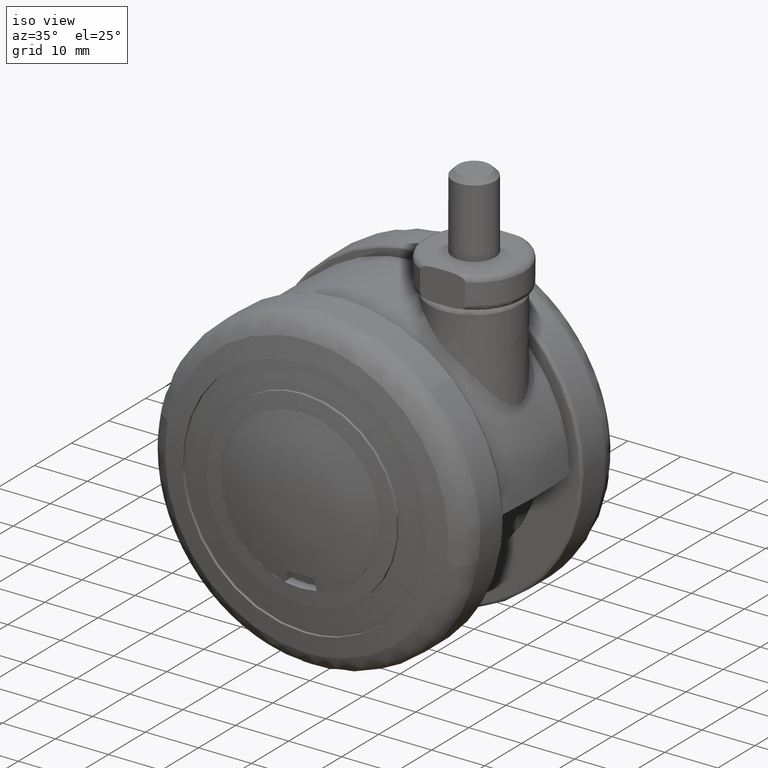
[diagram: clean part render]
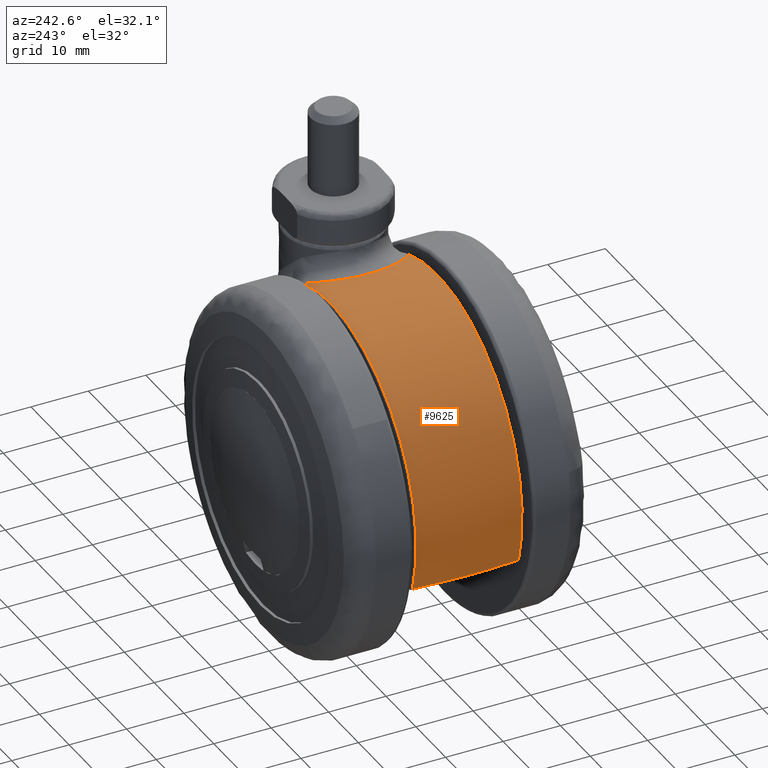
[diagram: tour spotlight — one face highlighted and labeled with its STEP entity id]
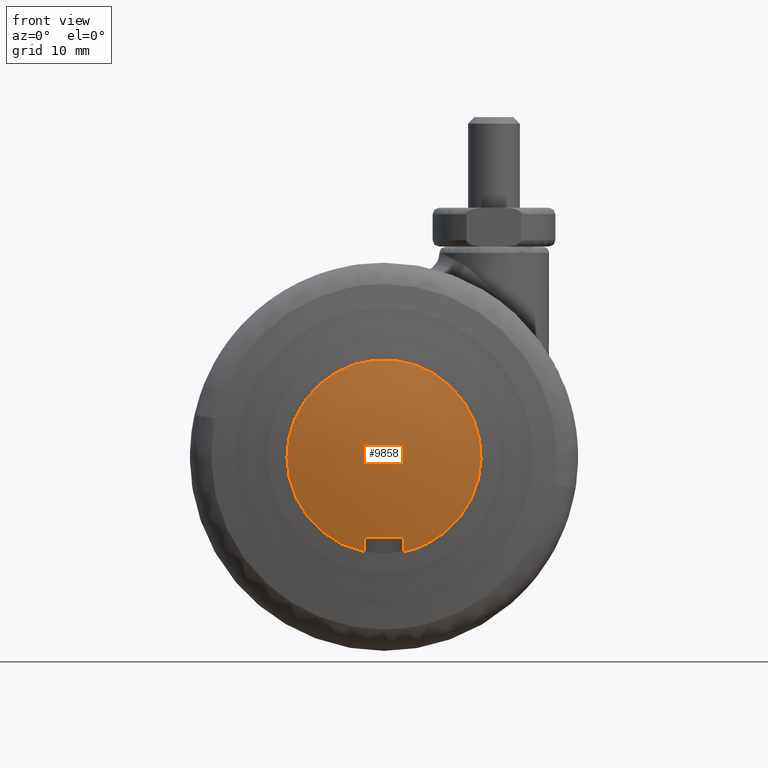
[diagram: tour spotlight — one face highlighted and labeled with its STEP entity id]
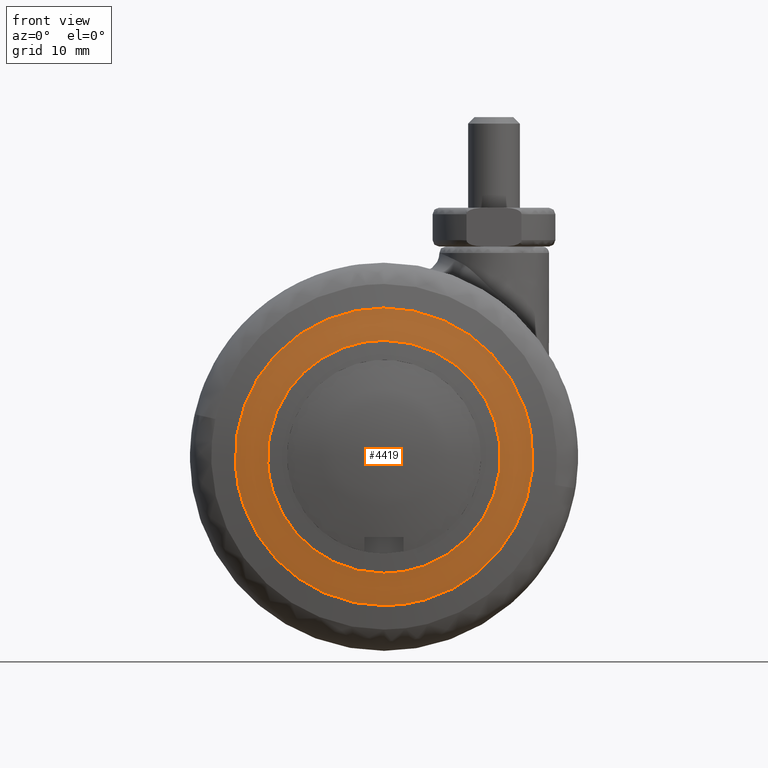
[diagram: tour spotlight — one face highlighted and labeled with its STEP entity id]
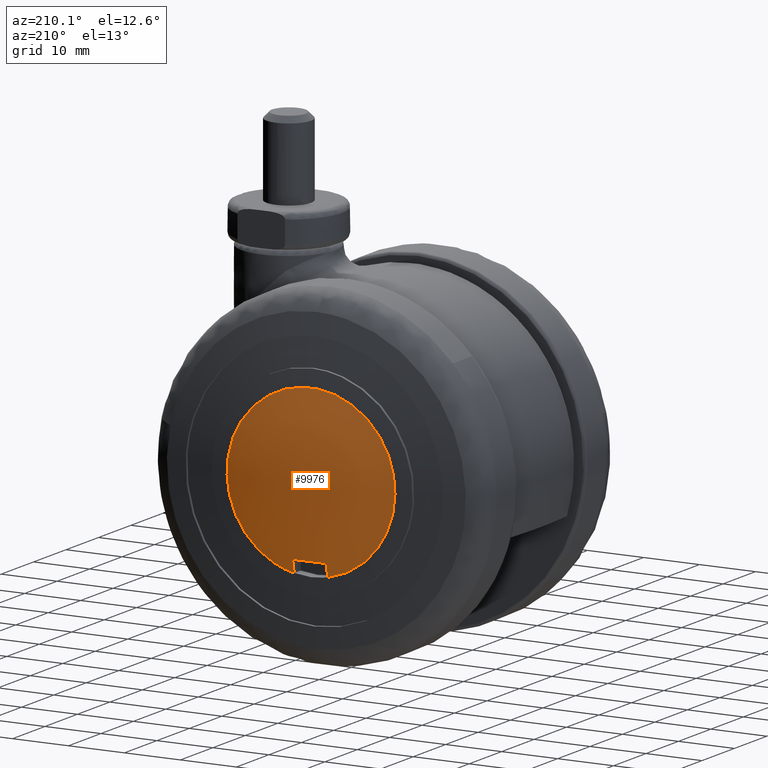
[diagram: tour spotlight — one face highlighted and labeled with its STEP entity id]
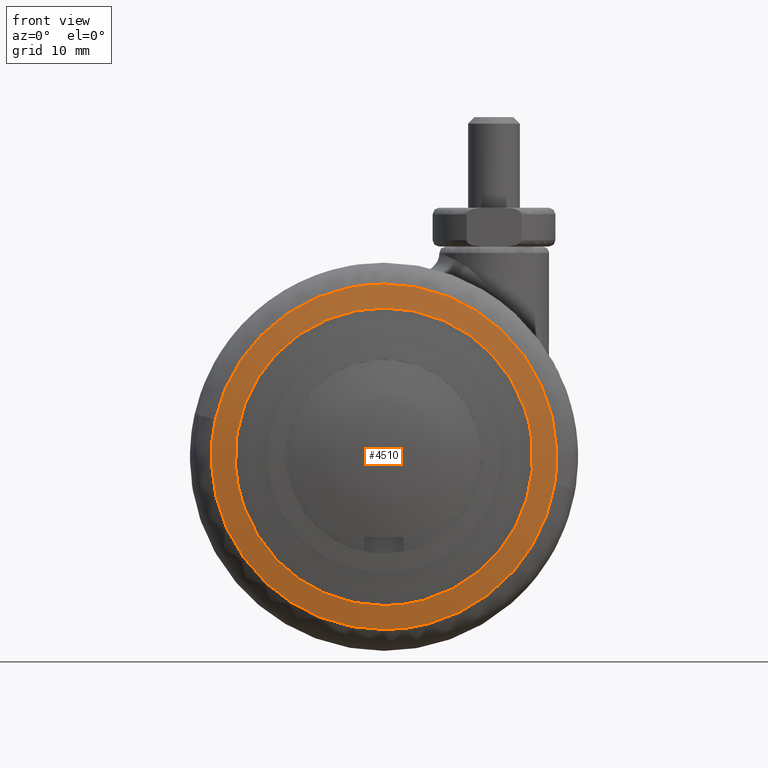
[diagram: tour spotlight — one face highlighted and labeled with its STEP entity id]
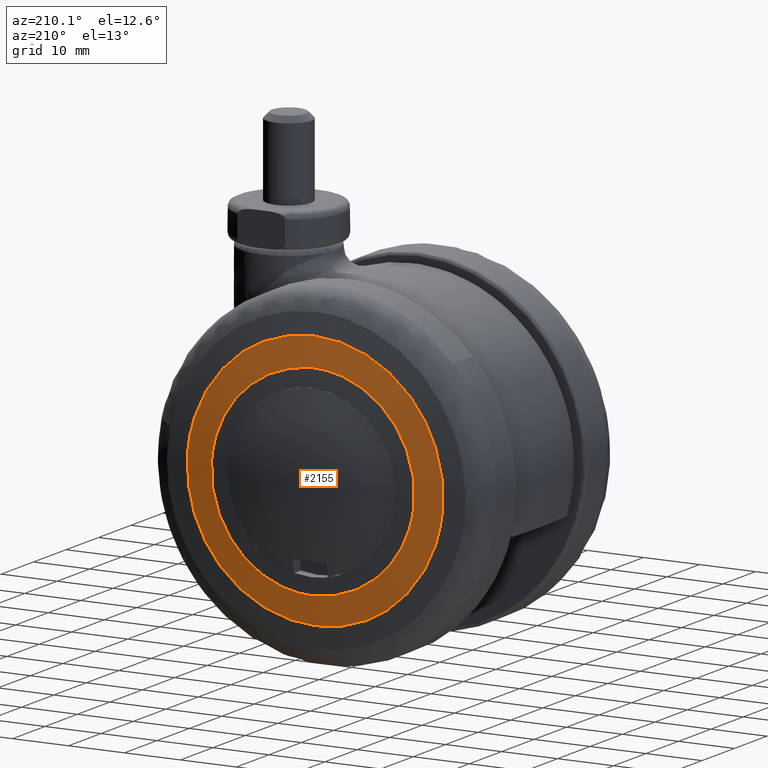
[diagram: tour spotlight — one face highlighted and labeled with its STEP entity id]
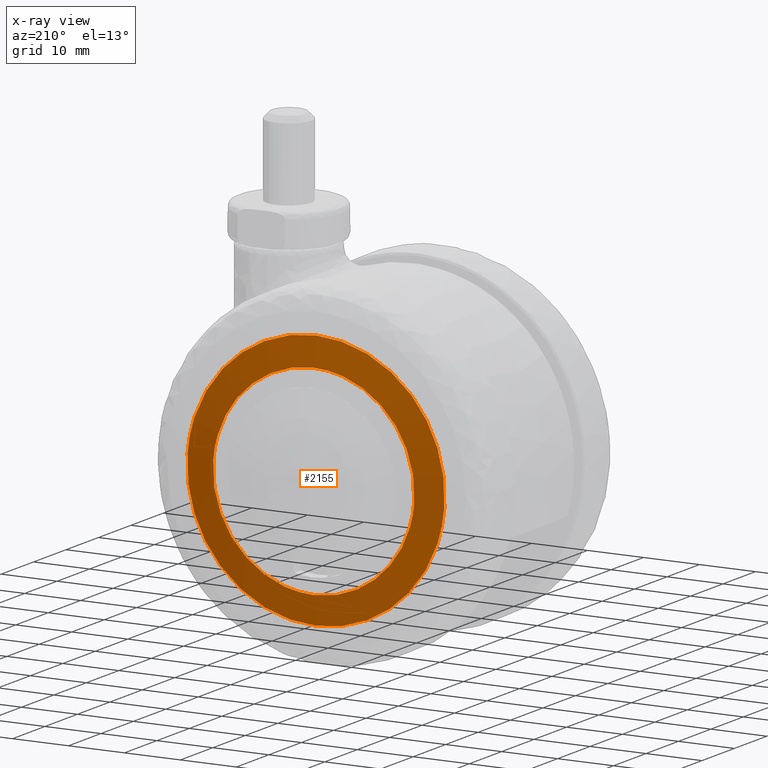
[diagram: x-ray of the same camera — body ghosted, this tour face saturated]
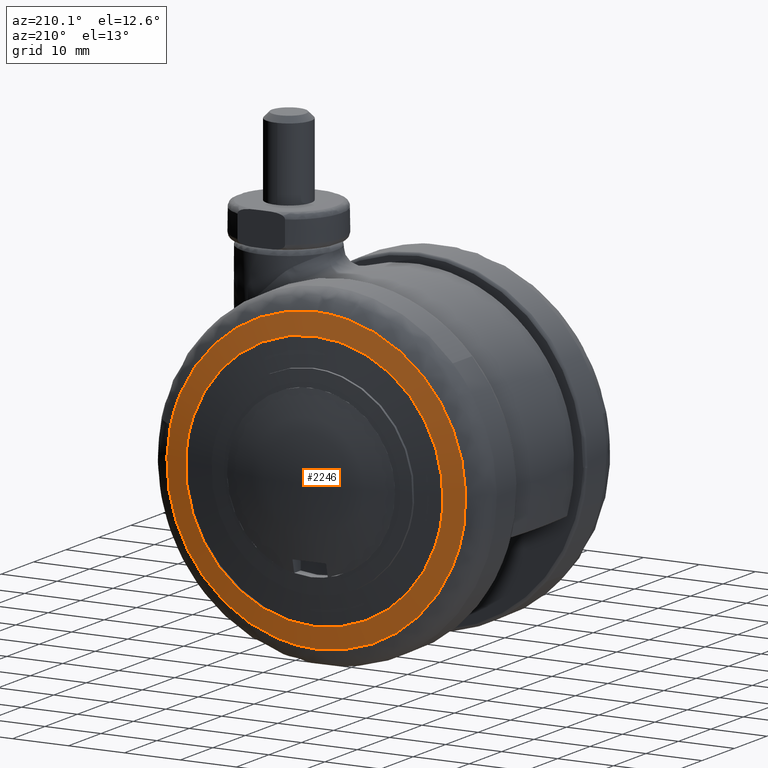
[diagram: tour spotlight — one face highlighted and labeled with its STEP entity id]
A machine part: a face-by-face anatomy tour. The part has 140 B-rep faces; the first image is the clean iso view, then the 7 largest visible faces are spotlighted one at a time (largest first), each with its STEP entity span.

Face 1 — auxiliary view, entity #9625. In plain terms, the highlighted face is a freeform B-spline surface patch.
Definition (entity closure, byte-faithful):
#7838=CARTESIAN_POINT('',(5.059516747520560,1.340962099850106,28.546281480002300));
#7839=VERTEX_POINT('',#7838);
#7855=CARTESIAN_POINT('',(5.062295755295710,-1.367205491745380,28.546316478665101));
#7856=VERTEX_POINT('',#7855);
#7857=CARTESIAN_POINT('',(5.062295755295710,-1.367205491745380,28.546316478665101));
#7858=CARTESIAN_POINT('',(5.010626840145182,-0.915896579493229,28.561180767147238));
#7859=CARTESIAN_POINT('',(4.959189204846862,-0.013225693845017,28.575692330697951));
#7860=CARTESIAN_POINT('',(5.008776061058359,0.889548483460565,28.561153399982530));
#7861=CARTESIAN_POINT('',(5.059516747520560,1.340962099850110,28.546281480002250));
#7862=B_SPLINE_CURVE_WITH_KNOTS('',3,(#7857,#7858,#7859,#7860,#7861),.UNSPECIFIED.,.F.,.U.,(4,1,4),(0.0,0.500000000000000,1.0),.UNSPECIFIED.);
#7863=EDGE_CURVE('',#7856,#7839,#7862,.T.);
#7982=CARTESIAN_POINT('',(9.501504232084491,-9.225721352359141,26.981105444065051));
#7983=VERTEX_POINT('',#7982);
#8033=CARTESIAN_POINT('',(9.501504232084491,-9.225721352359141,26.981105444065051));
#8034=CARTESIAN_POINT('',(9.203560095329822,-9.005785746395505,27.106093431928489));
#8035=CARTESIAN_POINT('',(8.913844856302749,-8.767418815966630,27.223364090854361));
#8036=CARTESIAN_POINT('',(8.563025605976115,-8.445239840962561,27.360964647899220));
#8037=CARTESIAN_POINT('',(8.493389849218694,-8.379544774348636,27.388049099979710));
#8038=CARTESIAN_POINT('',(8.356246053765331,-8.246642930895897,27.440964357125239));
#8039=CARTESIAN_POINT('',(8.153356836653380,-8.044694502824109,27.518600703204179));
#8040=CARTESIAN_POINT('',(7.958882392109852,-7.835061510399848,27.591227557974310));
#8041=CARTESIAN_POINT('',(7.581058447418008,-7.405745206480038,27.730265383465252));
#8042=CARTESIAN_POINT('',(7.343982817104533,-7.106158925007930,27.814688901021221));
#8043=CARTESIAN_POINT('',(6.899582904844656,-6.480654284401740,27.968945110117001));
#8044=CARTESIAN_POINT('',(6.692255892550428,-6.154737245473559,28.038775055559999));
#8045=CARTESIAN_POINT('',(6.452323006363753,-5.730633352185834,28.117783831159720));
#8046=CARTESIAN_POINT('',(6.405300016792903,-5.644975099820764,28.133170290549540));
#8047=CARTESIAN_POINT('',(6.313206654411290,-5.471968687279810,28.163128299414069));
#8048=CARTESIAN_POINT('',(6.268107470699666,-5.384554279186976,28.177708859658321));
#8049=CARTESIAN_POINT('',(6.136560748148816,-5.121355279062454,28.220000020845831));
#8050=CARTESIAN_POINT('',(6.053590873271313,-4.944125559003860,28.246350492418891));
#8051=CARTESIAN_POINT('',(5.818577340619182,-4.407281069777810,28.320261420750331));
#8052=CARTESIAN_POINT('',(5.680393222507999,-4.042525521111160,28.362704568433600));
#8053=CARTESIAN_POINT('',(5.440404932949914,-3.299646569260204,28.435390514219030));
#8054=CARTESIAN_POINT('',(5.338600552891083,-2.921522966139669,28.465630681770659));
#8055=CARTESIAN_POINT('',(5.213612301770892,-2.344224071372446,28.502394791886879));
#8056=CARTESIAN_POINT('',(5.176544823601611,-2.149895614861347,28.513221257370340));
#8057=CARTESIAN_POINT('',(5.111999950609592,-1.758674038590505,28.531985057903839));
#8058=CARTESIAN_POINT('',(5.084709387520912,-1.562980300441023,28.539868449045120));
#8059=CARTESIAN_POINT('',(5.062295755295710,-1.367205491745380,28.546316478665101));
#8060=B_SPLINE_CURVE_WITH_KNOTS('',3,(#8033,#8034,#8035,#8036,#8037,#8038,#8039,#8040,#8041,#8042,#8043,#8044,#8045,#8046,#8047,#8048,#8049,#8050,#8051,#8052,#8053,#8054,#8055,#8056,#8057,#8058,#8059),.UNSPECIFIED.,.F.,.U.,(4,2,2,1,2,2,2,2,2,2,2,2,2,4),(0.0,0.125000000000001,0.156250000000001,0.187500000000001,0.250000000000001,0.375000000000001,0.500000000000000,0.531250000000000,0.562500000000001,0.625000000000000,0.750000000000000,0.875000000000000,0.937500000000000,1.0),.UNSPECIFIED.);
#8061=EDGE_CURVE('',#7983,#7856,#8060,.T.);
#8166=CARTESIAN_POINT('',(9.504115565211670,9.225910421117030,26.973998097281552));
#8167=VERTEX_POINT('',#8166);
#8183=CARTESIAN_POINT('',(5.059516747520560,1.340962099850106,28.546281480002300));
#8184=CARTESIAN_POINT('',(5.081629933916507,1.537691670078839,28.539800181432781));
#8185=CARTESIAN_POINT('',(5.108742143898764,1.734776030772791,28.531848586138199));
#8186=CARTESIAN_POINT('',(5.172570085498111,2.126206586434802,28.513056700117289));
#8187=CARTESIAN_POINT('',(5.246042280661228,2.515505149678534,28.491364212747438));
#8188=CARTESIAN_POINT('',(5.338789612133349,2.900532317360915,28.463702504137380));
#8189=CARTESIAN_POINT('',(5.441248908518032,3.283400734707216,28.432924175588049));
#8190=CARTESIAN_POINT('',(5.497104532768221,3.472869992546622,28.416045365857720));
#8191=CARTESIAN_POINT('',(5.677957981042044,4.034297791639415,28.360931268356978));
#8192=CARTESIAN_POINT('',(5.816343985095614,4.399807408474569,28.318198178715530));
#8193=CARTESIAN_POINT('',(6.128175562353518,5.113381164567580,28.219699382910228));
#8194=CARTESIAN_POINT('',(6.301621480978626,5.461445619198782,28.163936970383251));
#8195=CARTESIAN_POINT('',(6.588490323331378,5.970090620508734,28.069203073209341));
#8196=CARTESIAN_POINT('',(6.688571870735639,6.137392355899720,28.035770934656941));
#8197=CARTESIAN_POINT('',(6.845514701305781,6.384884217360384,27.982617590877879));
#8198=CARTESIAN_POINT('',(6.898989812263138,6.466831290145148,27.964389999996239));
#8199=CARTESIAN_POINT('',(7.007573970494306,6.628585673210626,27.927121030748371));
#8200=CARTESIAN_POINT('',(7.062759447029435,6.708516536539709,27.908053919288299));
#8201=CARTESIAN_POINT('',(7.343093403516376,7.103477710441534,27.810508452660571));
#8202=CARTESIAN_POINT('',(7.581429248789579,7.404464419328385,27.725420670669980));
#8203=CARTESIAN_POINT('',(8.085232210989199,7.976866640702492,27.539624130657121));
#8204=CARTESIAN_POINT('',(8.350701883719555,8.248280880324783,27.438918412606700));
#8205=CARTESIAN_POINT('',(8.769083133193139,8.632856046497880,27.274587967132490));
#8206=CARTESIAN_POINT('',(8.911912097625775,8.757283348286791,27.217594529575301));
#8207=CARTESIAN_POINT('',(9.131238804970504,8.938169163279708,27.128537258487089));
#8208=CARTESIAN_POINT('',(9.205215579848519,8.997514365428017,27.098247228258028));
#8209=CARTESIAN_POINT('',(9.353931071711706,9.113551278958715,27.036825929850870));
#8210=CARTESIAN_POINT('',(9.428782865248378,9.170338252511597,27.005649055486121));
#8211=CARTESIAN_POINT('',(9.504115565211670,9.225910421117030,26.973998097281552));
#8212=B_SPLINE_CURVE_WITH_KNOTS('',3,(#8183,#8184,#8185,#8186,#8187,#8188,#8189,#8190,#8191,#8192,#8193,#8194,#8195,#8196,#8197,#8198,#8199,#8200,#8201,#8202,#8203,#8204,#8205,#8206,#8207,#8208,#8209,#8210,#8211),.UNSPECIFIED.,.F.,.U.,(4,2,1,2,2,2,2,2,2,2,2,2,2,2,4),(0.0,0.062500000000000,0.125000000000000,0.187500000000000,0.249999999999999,0.374999999999999,0.499999999999999,0.562499999999999,0.593749999999999,0.624999999999999,0.749999999999999,0.874999999999999,0.937500000000000,0.968750000000000,1.0),.UNSPECIFIED.);
#8213=EDGE_CURVE('',#7839,#8167,#8212,.T.);
#9107=CARTESIAN_POINT('',(-27.372560272495900,9.225910421117030,-8.286599432676050));
#9108=VERTEX_POINT('',#9107);
#9139=CARTESIAN_POINT('',(-27.378661767398199,-9.225721352359141,-8.286586358838260));
#9140=VERTEX_POINT('',#9139);
#9158=CARTESIAN_POINT('',(-27.372560272495900,9.225910421117030,-8.286599432676050));
#9159=CARTESIAN_POINT('',(-27.650666014243019,6.157540318089942,-8.286003411191107));
#9160=CARTESIAN_POINT('',(-27.790055424749362,3.082867323540472,-8.285716529338526));
#9161=CARTESIAN_POINT('',(-27.791658465721579,-1.538543218170912,-8.285713184443956));
#9162=CARTESIAN_POINT('',(-27.757511957860402,-3.079005762261954,-8.285784193779621));
#9163=CARTESIAN_POINT('',(-27.620023413236350,-6.155244753344616,-8.286072950721302));
#9164=CARTESIAN_POINT('',(-27.516697907832580,-7.691445844573929,-8.286290643040722));
#9165=CARTESIAN_POINT('',(-27.378661767398199,-9.225721352359141,-8.286586358838260));
#9166=B_SPLINE_CURVE_WITH_KNOTS('',3,(#9158,#9159,#9160,#9161,#9162,#9163,#9164,#9165),.UNSPECIFIED.,.F.,.U.,(4,2,2,4),(0.0,0.500000000000000,0.750000000000000,1.0),.UNSPECIFIED.);
#9167=EDGE_CURVE('',#9108,#9140,#9166,.T.);
#9211=CARTESIAN_POINT('',(-27.378661767398199,-9.225721352359141,-8.286586358838267));
#9212=CARTESIAN_POINT('',(-32.468592195011382,-9.225721352359143,8.530408910700800));
#9213=CARTESIAN_POINT('',(-19.769944654999659,-9.225721352359141,20.673846328013731));
#9214=CARTESIAN_POINT('',(-7.071297114987921,-9.225721352359143,32.817283745326662));
#9215=CARTESIAN_POINT('',(9.501504232084486,-9.225721352359141,26.981105444065051));
#9223=(BOUNDED_CURVE()B_SPLINE_CURVE(2,(#9211,#9212,#9213,#9214,#9215),.UNSPECIFIED.,.F.,.U.)B_SPLINE_CURVE_WITH_KNOTS((3,2,3),(0.0,0.500000000000000,1.0),.UNSPECIFIED.)CURVE()GEOMETRIC_REPRESENTATION_ITEM()RATIONAL_B_SPLINE_CURVE((1.0,0.852094384698286,1.0,0.852094384698286,1.0))REPRESENTATION_ITEM(''));
#9224=EDGE_CURVE('',#9140,#7983,#9223,.T.);
#9294=CARTESIAN_POINT('',(9.504115565211668,9.225910421117030,26.973998097281552));
#9295=CARTESIAN_POINT('',(-7.066464892938787,9.225910421117030,32.812536051088692));
#9296=CARTESIAN_POINT('',(-19.764811246423051,9.225910421117030,20.670680260270011));
#9297=CARTESIAN_POINT('',(-32.463157599907326,9.225910421117030,8.528824469451319));
#9298=CARTESIAN_POINT('',(-27.372560272495900,9.225910421117030,-8.286599432676043));
#9306=(BOUNDED_CURVE()B_SPLINE_CURVE(2,(#9294,#9295,#9296,#9297,#9298),.UNSPECIFIED.,.F.,.U.)B_SPLINE_CURVE_WITH_KNOTS((3,2,3),(0.0,0.500000000000000,1.0),.UNSPECIFIED.)CURVE()GEOMETRIC_REPRESENTATION_ITEM()RATIONAL_B_SPLINE_CURVE((1.0,0.852064169373429,1.0,0.852064169373429,1.0))REPRESENTATION_ITEM(''));
#9307=EDGE_CURVE('',#8167,#9108,#9306,.T.);
#9588=CARTESIAN_POINT('',(-26.676848450256447,10.143581472001538,-10.074707589780928));
#9589=CARTESIAN_POINT('',(-27.581709698437958,0.000360349883320,-10.416435080633216));
#9590=CARTESIAN_POINT('',(-26.682848940941646,-10.143470366928019,-10.076973719123798));
#9591=CARTESIAN_POINT('',(-28.515854822493747,10.143581472001538,-5.205197099869348));
#9592=CARTESIAN_POINT('',(-29.483093963794801,0.000360349883319,-5.381753980401959));
#9593=CARTESIAN_POINT('',(-28.522268965512239,-10.143470366928019,-5.206367917957944));
#9594=CARTESIAN_POINT('',(-28.515854822493743,10.143581472001534,0.0));
#9595=CARTESIAN_POINT('',(-29.483093963794794,0.000360349883318,0.0));
#9596=CARTESIAN_POINT('',(-28.522268965512236,-10.143470366928021,0.0));
#9597=CARTESIAN_POINT('',(-28.515854822493733,10.143581472001541,28.515854822493733));
#9598=CARTESIAN_POINT('',(-29.483093963794786,0.000360349883322,29.483093963794786));
#9599=CARTESIAN_POINT('',(-28.522268965512225,-10.143470366928021,28.522268965512225));
#9600=CARTESIAN_POINT('',(0.0,10.143581472001534,28.515854822493743));
#9601=CARTESIAN_POINT('',(0.0,0.000360349883318,29.483093963794794));
#9602=CARTESIAN_POINT('',(0.0,-10.143470366928021,28.522268965512236));
#9603=CARTESIAN_POINT('',(6.150231705096826,10.143581472001534,28.515854822493740));
#9604=CARTESIAN_POINT('',(6.358843541223439,0.000360349883319,29.483093963794797));
#9605=CARTESIAN_POINT('',(6.151615092198456,-10.143470366928021,28.522268965512232));
#9606=CARTESIAN_POINT('',(11.753717655500665,10.143581472001536,25.980840970459589));
#9607=CARTESIAN_POINT('',(12.152396069420547,0.000360349883320,26.862094100235090));
#9608=CARTESIAN_POINT('',(11.756361448804793,-10.143470366928021,25.986684906430032));
#9616=(BOUNDED_SURFACE()B_SPLINE_SURFACE(2,2,((#9588,#9591,#9594,#9597,#9600,#9603,#9606),(#9589,#9592,#9595,#9598,#9601,#9604,#9607),(#9590,#9593,#9596,#9599,#9602,#9605,#9608)),.UNSPECIFIED.,.F.,.F.,.U.)B_SPLINE_SURFACE_WITH_KNOTS((3,3),(3,2,2,3),(0.0,20.332657518536401),(0.0,11.531703328840390,59.580467199008702,73.034119707969666),.UNSPECIFIED.)GEOMETRIC_REPRESENTATION_ITEM()RATIONAL_B_SPLINE_SURFACE(((0.774103826024944,0.805784723191523,0.866709525434944,0.612856182754023,0.866709525434944,0.795630596747089,0.764355864057263),(0.770619757233790,0.802158065743160,0.862808659030408,0.610097853666873,0.862808659030408,0.792049640758732,0.760915668670332),(0.774080618033699,0.805760565392307,0.866683541081938,0.612837809041808,0.866683541081938,0.795606743373287,0.764332948314433)))REPRESENTATION_ITEM('')SURFACE());
#9617=ORIENTED_EDGE('',*,*,#7863,.T.);
#9618=ORIENTED_EDGE('',*,*,#8213,.T.);
#9619=ORIENTED_EDGE('',*,*,#9307,.T.);
#9620=ORIENTED_EDGE('',*,*,#9167,.T.);
#9621=ORIENTED_EDGE('',*,*,#9224,.T.);
#9622=ORIENTED_EDGE('',*,*,#8061,.T.);
#9623=EDGE_LOOP('',(#9617,#9618,#9619,#9620,#9621,#9622));
#9624=FACE_OUTER_BOUND('',#9623,.T.);
#9625=ADVANCED_FACE('',(#9624),#9616,.T.);

Face 2 — front view, entity #9858. In plain terms, the highlighted face is a freeform B-spline surface patch.
Definition (entity closure, byte-faithful):
#7707=CARTESIAN_POINT('',(3.0,-23.033229668414350,-12.400000000000000));
#7708=VERTEX_POINT('',#7707);
#7709=CARTESIAN_POINT('',(-3.0,-23.033229668414350,-12.400000000000000));
#7710=VERTEX_POINT('',#7709);
#7711=CARTESIAN_POINT('',(3.000000000000015,-23.033229668414350,-12.400000000000000));
#7712=CARTESIAN_POINT('',(2.168404E-014,-23.186739989781426,-12.399999999999997));
#7713=CARTESIAN_POINT('',(-2.999999999999993,-23.033229668414350,-12.400000000000000));
#7721=(BOUNDED_CURVE()B_SPLINE_CURVE(2,(#7711,#7712,#7713),.UNSPECIFIED.,.F.,.U.)CURVE()GEOMETRIC_REPRESENTATION_ITEM()QUASI_UNIFORM_CURVE()RATIONAL_B_SPLINE_CURVE((1.0,0.998693375438973,1.0))REPRESENTATION_ITEM(''));
#7722=EDGE_CURVE('',#7708,#7710,#7721,.T.);
#7751=CARTESIAN_POINT('',(3.0,-22.500000193105048,-14.696938456699060));
#7752=VERTEX_POINT('',#7751);
#7753=CARTESIAN_POINT('',(3.0,-22.500000193105048,-14.696938456699060));
#7754=CARTESIAN_POINT('',(2.999999999999999,-22.789215183001911,-13.553715829802712));
#7755=CARTESIAN_POINT('',(3.0,-23.033229668414268,-12.399999999999990));
#7763=(BOUNDED_CURVE()B_SPLINE_CURVE(2,(#7753,#7754,#7755),.UNSPECIFIED.,.F.,.U.)CURVE()GEOMETRIC_REPRESENTATION_ITEM()QUASI_UNIFORM_CURVE()RATIONAL_B_SPLINE_CURVE((1.0,0.999806432813241,1.0))REPRESENTATION_ITEM(''));
#7764=EDGE_CURVE('',#7752,#7708,#7763,.T.);
#7787=CARTESIAN_POINT('',(-3.0,-22.500000193105048,-14.696938456699060));
#7788=VERTEX_POINT('',#7787);
#7789=CARTESIAN_POINT('',(-3.0,-23.033229668414268,-12.399999999999970));
#7790=CARTESIAN_POINT('',(-3.0,-22.789215183001925,-13.553715829802664));
#7791=CARTESIAN_POINT('',(-3.0,-22.500000193105048,-14.696938456699060));
#7799=(BOUNDED_CURVE()B_SPLINE_CURVE(2,(#7789,#7790,#7791),.UNSPECIFIED.,.F.,.U.)CURVE()GEOMETRIC_REPRESENTATION_ITEM()QUASI_UNIFORM_CURVE()RATIONAL_B_SPLINE_CURVE((1.0,0.999806432813240,1.0))REPRESENTATION_ITEM(''));
#7800=EDGE_CURVE('',#7710,#7788,#7799,.T.);
#9804=CARTESIAN_POINT('',(-3.0,-22.500000193105048,-14.696938456699060));
#9805=CARTESIAN_POINT('',(-16.287048005877153,-22.500000193111298,-11.984731139843753));
#9806=CARTESIAN_POINT('',(-14.924042295076861,-22.500000193111301,1.507634430078121));
#9807=CARTESIAN_POINT('',(-13.561036584276568,-22.500000193111298,14.999999999999998));
#9808=CARTESIAN_POINT('',(0.0,-22.500000193111301,15.0));
#9809=CARTESIAN_POINT('',(13.561036584276568,-22.500000193111298,14.999999999999998));
#9810=CARTESIAN_POINT('',(14.924042295076861,-22.500000193111301,1.507634430078128));
#9811=CARTESIAN_POINT('',(16.287048005877153,-22.500000193111298,-11.984731139843747));
#9812=CARTESIAN_POINT('',(3.0,-22.500000193105048,-14.696938456699060));
#9820=(BOUNDED_CURVE()B_SPLINE_CURVE(2,(#9804,#9805,#9806,#9807,#9808,#9809,#9810,#9811,#9812),.UNSPECIFIED.,.F.,.U.)B_SPLINE_CURVE_WITH_KNOTS((3,2,2,2,3),(0.0,0.250000000000000,0.500000000000000,0.750000000000000,1.0),.UNSPECIFIED.)CURVE()GEOMETRIC_REPRESENTATION_ITEM()RATIONAL_B_SPLINE_CURVE((1.0,0.741791399924941,1.0,0.741791399924941,1.0,0.741791399924941,1.0,0.741791399924941,1.0))REPRESENTATION_ITEM(''));
#9821=EDGE_CURVE('',#7788,#7752,#9820,.T.);
#9828=CARTESIAN_POINT('',(-16.098346467538715,-19.987903132292345,-15.855974009386893));
#9829=CARTESIAN_POINT('',(-8.202931159676842,-22.195516713013962,-16.133352820747060));
#9830=CARTESIAN_POINT('',(8.202930561120420,-22.195516713013962,-16.133352820747049));
#9831=CARTESIAN_POINT('',(16.098345336901620,-19.987903448426390,-15.855974049108001));
#9832=CARTESIAN_POINT('',(-16.445717487160895,-22.287371305518388,-7.442574693214092));
#9833=CARTESIAN_POINT('',(-8.383390024889796,-24.588442385695281,-7.561804526654255));
#9834=CARTESIAN_POINT('',(8.383389413165542,-24.588442385695281,-7.561804526654255));
#9835=CARTESIAN_POINT('',(16.445716333097600,-22.287371634899916,-7.442574710280973));
#9836=CARTESIAN_POINT('',(-16.445717487160895,-21.925092315760146,8.832047118799208));
#9837=CARTESIAN_POINT('',(-8.383390024889796,-24.219090781384001,9.030539621808934));
#9838=CARTESIAN_POINT('',(8.383389413165542,-24.219090781384001,9.030539621808934));
#9839=CARTESIAN_POINT('',(16.445716333097600,-21.925092644129272,8.832047147211968));
#9840=CARTESIAN_POINT('',(-16.184465571661647,-19.893092356467758,16.098522441003045));
#9841=CARTESIAN_POINT('',(-8.247656069661629,-22.110921546133486,16.433364579712762));
#9842=CARTESIAN_POINT('',(8.247655467841693,-22.110921546133486,16.433364579712762));
#9843=CARTESIAN_POINT('',(16.184464435212977,-19.893092674032257,16.098522488948113));
#9851=(BOUNDED_SURFACE()B_SPLINE_SURFACE(2,2,((#9828,#9832,#9836,#9840),(#9829,#9833,#9837,#9841),(#9830,#9834,#9838,#9842),(#9831,#9835,#9839,#9843)),.UNSPECIFIED.,.F.,.F.,.U.)B_SPLINE_SURFACE_WITH_KNOTS((3,1,3),(3,1,3),(14.482770024585720,30.682292575586398,46.881813944530492),(13.485859606695181,30.682292575586398,45.555778767633441),.UNSPECIFIED.)GEOMETRIC_REPRESENTATION_ITEM()RATIONAL_B_SPLINE_SURFACE(((1.041521878261768,1.019522563419284,1.019522563419284,1.035979839775345),(1.021999314842484,1.0,1.0,1.016457276356061),(1.021999314842484,1.0,1.0,1.016457276356061),(1.041521875412700,1.019522560570215,1.019522560570215,1.035979836926277)))REPRESENTATION_ITEM('')SURFACE());
#9852=ORIENTED_EDGE('',*,*,#7800,.F.);
#9853=ORIENTED_EDGE('',*,*,#7722,.F.);
#9854=ORIENTED_EDGE('',*,*,#7764,.F.);
#9855=ORIENTED_EDGE('',*,*,#9821,.F.);
#9856=EDGE_LOOP('',(#9852,#9853,#9854,#9855));
#9857=FACE_OUTER_BOUND('',#9856,.T.);
#9858=ADVANCED_FACE('',(#9857),#9851,.T.);

Face 3 — front view, entity #4419. In plain terms, the highlighted face is a freeform B-spline surface patch.
Definition (entity closure, byte-faithful):
#2720=CARTESIAN_POINT('',(-17.966428118574090,-21.664317093810698,-1.098845148003625));
#2721=VERTEX_POINT('',#2720);
#2727=CARTESIAN_POINT('',(0.0,-21.664317093810698,-18.0));
#2728=VERTEX_POINT('',#2727);
#2729=CARTESIAN_POINT('',(0.0,-21.664317093810698,-18.0));
#2730=CARTESIAN_POINT('',(-16.932736174811232,-21.664317093810702,-18.000000000000004));
#2731=CARTESIAN_POINT('',(-17.966428118574090,-21.664317093810702,-1.098845148003625));
#2739=(BOUNDED_CURVE()B_SPLINE_CURVE(2,(#2729,#2730,#2731),.UNSPECIFIED.,.F.,.U.)B_SPLINE_CURVE_WITH_KNOTS((3,3),(0.500000000000000,0.739333236562665),.UNSPECIFIED.)CURVE()GEOMETRIC_REPRESENTATION_ITEM()RATIONAL_B_SPLINE_CURVE((1.0,0.719603671896478,0.976072629595379))REPRESENTATION_ITEM(''));
#2740=EDGE_CURVE('',#2728,#2721,#2739,.T.);
#2742=CARTESIAN_POINT('',(17.874174640093440,-21.664317093810698,2.124589592067359));
#2743=VERTEX_POINT('',#2742);
#2744=CARTESIAN_POINT('',(17.874174640093440,-21.664317093810695,2.124589592067359));
#2745=CARTESIAN_POINT('',(17.999999999999996,-21.664317093810691,1.066020697086458));
#2746=CARTESIAN_POINT('',(18.0,-21.664317093810698,0.0));
#2747=CARTESIAN_POINT('',(18.000000000000007,-21.664317093810698,-18.000000000000007));
#2748=CARTESIAN_POINT('',(0.0,-21.664317093810698,-18.0));
#2756=(BOUNDED_CURVE()B_SPLINE_CURVE(2,(#2744,#2745,#2746,#2747,#2748),.UNSPECIFIED.,.F.,.U.)B_SPLINE_CURVE_WITH_KNOTS((3,2,3),(0.229562725323310,0.250000000000000,0.500000000000000),.UNSPECIFIED.)CURVE()GEOMETRIC_REPRESENTATION_ITEM()RATIONAL_B_SPLINE_CURVE((0.956027247741810,0.976056243344679,1.0,0.707106781186547,1.0))REPRESENTATION_ITEM(''));
#2757=EDGE_CURVE('',#2743,#2728,#2756,.T.);
#2805=CARTESIAN_POINT('',(0.0,-21.664317093810698,18.0));
#2806=VERTEX_POINT('',#2805);
#2807=CARTESIAN_POINT('',(0.0,-21.664317093810698,18.0));
#2808=CARTESIAN_POINT('',(15.987165454982591,-21.664317093810691,18.0));
#2809=CARTESIAN_POINT('',(17.874174640093440,-21.664317093810695,2.124589592067359));
#2817=(BOUNDED_CURVE()B_SPLINE_CURVE(2,(#2807,#2808,#2809),.UNSPECIFIED.,.F.,.U.)B_SPLINE_CURVE_WITH_KNOTS((3,3),(0.0,0.229562725323310),.UNSPECIFIED.)CURVE()GEOMETRIC_REPRESENTATION_ITEM()RATIONAL_B_SPLINE_CURVE((1.0,0.731050537841869,0.956027247741810))REPRESENTATION_ITEM(''));
#2818=EDGE_CURVE('',#2806,#2743,#2817,.T.);
#2820=CARTESIAN_POINT('',(-17.966428118574090,-21.664317093810702,-1.098845148003625));
#2821=CARTESIAN_POINT('',(-18.000000000000004,-21.664317093810698,-0.549935417519627));
#2822=CARTESIAN_POINT('',(-18.0,-21.664317093810698,0.0));
#2823=CARTESIAN_POINT('',(-18.000000000000007,-21.664317093810698,18.000000000000007));
#2824=CARTESIAN_POINT('',(0.0,-21.664317093810698,18.0));
#2832=(BOUNDED_CURVE()B_SPLINE_CURVE(2,(#2820,#2821,#2822,#2823,#2824),.UNSPECIFIED.,.F.,.U.)B_SPLINE_CURVE_WITH_KNOTS((3,2,3),(0.739333236562665,0.750000000000000,1.0),.UNSPECIFIED.)CURVE()GEOMETRIC_REPRESENTATION_ITEM()RATIONAL_B_SPLINE_CURVE((0.976072629595379,0.987503109290069,1.0,0.707106781186547,1.0))REPRESENTATION_ITEM(''));
#2833=EDGE_CURVE('',#2721,#2806,#2832,.T.);
#2876=CARTESIAN_POINT('',(22.839222195741229,-20.972059654651868,2.714761406252123));
#2877=VERTEX_POINT('',#2876);
#2878=CARTESIAN_POINT('',(0.0,-20.972059654648898,-23.0));
#2879=VERTEX_POINT('',#2878);
#2880=CARTESIAN_POINT('',(22.839222195741236,-20.972059654651865,2.714761406252123));
#2881=CARTESIAN_POINT('',(23.000000000000004,-20.972059654648895,1.362141619183499));
#2882=CARTESIAN_POINT('',(23.0,-20.972059654648898,0.0));
#2883=CARTESIAN_POINT('',(22.999999999999993,-20.972059654648895,-22.999999999999993));
#2884=CARTESIAN_POINT('',(0.0,-20.972059654648898,-23.0));
#2892=(BOUNDED_CURVE()B_SPLINE_CURVE(2,(#2880,#2881,#2882,#2883,#2884),.UNSPECIFIED.,.F.,.U.)B_SPLINE_CURVE_WITH_KNOTS((3,2,3),(0.229562665840038,0.250000000000000,0.500000000000000),.UNSPECIFIED.)CURVE()GEOMETRIC_REPRESENTATION_ITEM()RATIONAL_B_SPLINE_CURVE((0.956027131151914,0.976056173655690,1.0,0.707106781186548,1.0))REPRESENTATION_ITEM(''));
#2893=EDGE_CURVE('',#2877,#2879,#2892,.T.);
#2895=CARTESIAN_POINT('',(-22.957102099430809,-20.972059654647300,-1.404088029826050));
#2896=VERTEX_POINT('',#2895);
#2897=CARTESIAN_POINT('',(0.0,-20.972059654648898,-23.0));
#2898=CARTESIAN_POINT('',(-21.636266335458412,-20.972059654648902,-23.000000000000004));
#2899=CARTESIAN_POINT('',(-22.957102099430809,-20.972059654647293,-1.404088029826050));
#2907=(BOUNDED_CURVE()B_SPLINE_CURVE(2,(#2897,#2898,#2899),.UNSPECIFIED.,.F.,.U.)B_SPLINE_CURVE_WITH_KNOTS((3,3),(0.500000000000000,0.739333175543654),.UNSPECIFIED.)CURVE()GEOMETRIC_REPRESENTATION_ITEM()RATIONAL_B_SPLINE_CURVE((1.0,0.719603743384697,0.976072498819744))REPRESENTATION_ITEM(''));
#2908=EDGE_CURVE('',#2879,#2896,#2907,.T.);
#2975=CARTESIAN_POINT('',(0.0,-20.972059654648898,23.0));
#2976=VERTEX_POINT('',#2975);
#2977=CARTESIAN_POINT('',(0.0,-20.972059654648898,23.0));
#2978=CARTESIAN_POINT('',(20.428037507461912,-20.972059654648902,22.999999999999989));
#2979=CARTESIAN_POINT('',(22.839222195741236,-20.972059654651865,2.714761406252123));
#2987=(BOUNDED_CURVE()B_SPLINE_CURVE(2,(#2977,#2978,#2979),.UNSPECIFIED.,.F.,.U.)B_SPLINE_CURVE_WITH_KNOTS((3,3),(0.0,0.229562665840038),.UNSPECIFIED.)CURVE()GEOMETRIC_REPRESENTATION_ITEM()RATIONAL_B_SPLINE_CURVE((1.0,0.731050607530858,0.956027131151914))REPRESENTATION_ITEM(''));
#2988=EDGE_CURVE('',#2976,#2877,#2987,.T.);
#3022=CARTESIAN_POINT('',(-22.957102099430809,-20.972059654647293,-1.404088029826050));
#3023=CARTESIAN_POINT('',(-23.000000000000004,-20.972059654648898,-0.702699326344414));
#3024=CARTESIAN_POINT('',(-23.0,-20.972059654648898,0.0));
#3025=CARTESIAN_POINT('',(-22.999999999999993,-20.972059654648895,22.999999999999993));
#3026=CARTESIAN_POINT('',(0.0,-20.972059654648898,23.0));
#3034=(BOUNDED_CURVE()B_SPLINE_CURVE(2,(#3022,#3023,#3024,#3025,#3026),.UNSPECIFIED.,.F.,.U.)B_SPLINE_CURVE_WITH_KNOTS((3,2,3),(0.739333175543654,0.750000000000000,1.0),.UNSPECIFIED.)CURVE()GEOMETRIC_REPRESENTATION_ITEM()RATIONAL_B_SPLINE_CURVE((0.976072498819744,0.987503037801851,1.0,0.707106781186548,1.0))REPRESENTATION_ITEM(''));
#3035=EDGE_CURVE('',#2896,#2976,#3034,.T.);
#4383=CARTESIAN_POINT('',(-25.085178688016942,-18.481667786812679,-25.085733034644559));
#4384=CARTESIAN_POINT('',(-12.632796017781560,-20.601373107450254,-25.266150369068097));
#4385=CARTESIAN_POINT('',(12.632866369248905,-20.601373107450254,-25.266150369068097));
#4386=CARTESIAN_POINT('',(25.085316391142563,-18.481644346248704,-25.085731039516258));
#4387=CARTESIAN_POINT('',(-25.265600066756605,-20.601467467228911,-12.633079200219525));
#4388=CARTESIAN_POINT('',(-12.724313703210621,-22.751884999999959,-12.724594892373270));
#4389=CARTESIAN_POINT('',(12.724384564335800,-22.751884999999959,-12.724594892373270));
#4390=CARTESIAN_POINT('',(25.265738745838640,-20.601443688266901,-12.633078188254110));
#4391=CARTESIAN_POINT('',(-25.265600066756605,-20.601467467228911,12.633078174715312));
#4392=CARTESIAN_POINT('',(-12.724313703210621,-22.751884999999959,12.724593859440169));
#4393=CARTESIAN_POINT('',(12.724384564335800,-22.751884999999959,12.724593859440169));
#4394=CARTESIAN_POINT('',(25.265738745838640,-20.601443688266901,12.633077162749981));
#4395=CARTESIAN_POINT('',(-25.085178717099584,-18.481668128509249,25.085731027365643));
#4396=CARTESIAN_POINT('',(-12.632796032532795,-20.601373454079482,25.266148347563441));
#4397=CARTESIAN_POINT('',(12.632866384000224,-20.601373454079482,25.266148347563441));
#4398=CARTESIAN_POINT('',(25.085316420225361,-18.481644687945217,25.085729032237499));
#4406=(BOUNDED_SURFACE()B_SPLINE_SURFACE(2,2,((#4383,#4387,#4391,#4395),(#4384,#4388,#4392,#4396),(#4385,#4389,#4393,#4397),(#4386,#4390,#4394,#4398)),.UNSPECIFIED.,.F.,.F.,.U.)B_SPLINE_SURFACE_WITH_KNOTS((3,1,3),(3,1,3),(44.243983181762687,68.995994311008900,93.748143283081049),(44.243436197662362,68.995994311008886,93.748550415039063),.UNSPECIFIED.)GEOMETRIC_REPRESENTATION_ITEM()RATIONAL_B_SPLINE_SURFACE(((1.014488583993142,1.007244131909832,1.007244131909832,1.014488582816989),(1.007244452083311,1.0,1.0,1.007244450907158),(1.007244452083311,1.0,1.0,1.007244450907158),(1.014488664677850,1.007244212594540,1.007244212594540,1.014488663501697)))REPRESENTATION_ITEM('')SURFACE());
#4407=ORIENTED_EDGE('',*,*,#3035,.F.);
#4408=ORIENTED_EDGE('',*,*,#2908,.F.);
#4409=ORIENTED_EDGE('',*,*,#2893,.F.);
#4410=ORIENTED_EDGE('',*,*,#2988,.F.);
#4411=EDGE_LOOP('',(#4407,#4408,#4409,#4410));
#4412=FACE_OUTER_BOUND('',#4411,.T.);
#4413=ORIENTED_EDGE('',*,*,#2740,.T.);
#4414=ORIENTED_EDGE('',*,*,#2833,.T.);
#4415=ORIENTED_EDGE('',*,*,#2818,.T.);
#4416=ORIENTED_EDGE('',*,*,#2757,.T.);
#4417=EDGE_LOOP('',(#4413,#4414,#4415,#4416));
#4418=FACE_BOUND('',#4417,.T.);
#4419=ADVANCED_FACE('',(#4412,#4418),#4406,.T.);

Face 4 — auxiliary view, entity #9976. In plain terms, the highlighted face is a freeform B-spline surface patch.
Definition (entity closure, byte-faithful):
#7591=CARTESIAN_POINT('',(3.0,23.033229668414350,-12.400000000000000));
#7592=VERTEX_POINT('',#7591);
#7593=CARTESIAN_POINT('',(3.0,22.500000193105048,-14.696938456699060));
#7594=VERTEX_POINT('',#7593);
#7595=CARTESIAN_POINT('',(3.0,23.033229668414350,-12.400000000000000));
#7596=CARTESIAN_POINT('',(2.999999999999999,22.789215183001883,-13.553715829802872));
#7597=CARTESIAN_POINT('',(3.0,22.500000193105048,-14.696938456699060));
#7605=(BOUNDED_CURVE()B_SPLINE_CURVE(2,(#7595,#7596,#7597),.UNSPECIFIED.,.F.,.U.)CURVE()GEOMETRIC_REPRESENTATION_ITEM()QUASI_UNIFORM_CURVE()RATIONAL_B_SPLINE_CURVE((1.0,0.999806432813241,1.0))REPRESENTATION_ITEM(''));
#7606=EDGE_CURVE('',#7592,#7594,#7605,.T.);
#7635=CARTESIAN_POINT('',(-3.0,22.500000193105048,-14.696938456699060));
#7636=VERTEX_POINT('',#7635);
#7637=CARTESIAN_POINT('',(-3.0,23.033229668414350,-12.400000000000000));
#7638=VERTEX_POINT('',#7637);
#7639=CARTESIAN_POINT('',(-3.0,22.500000193105048,-14.696938456699060));
#7640=CARTESIAN_POINT('',(-3.0,22.789215183001904,-13.553715829802774));
#7641=CARTESIAN_POINT('',(-3.0,23.033229668414350,-12.400000000000000));
#7649=(BOUNDED_CURVE()B_SPLINE_CURVE(2,(#7639,#7640,#7641),.UNSPECIFIED.,.F.,.U.)CURVE()GEOMETRIC_REPRESENTATION_ITEM()QUASI_UNIFORM_CURVE()RATIONAL_B_SPLINE_CURVE((1.0,0.999806432813240,1.0))REPRESENTATION_ITEM(''));
#7650=EDGE_CURVE('',#7636,#7638,#7649,.T.);
#7679=CARTESIAN_POINT('',(-2.999999999999994,23.033229668414350,-12.400000000000000));
#7680=CARTESIAN_POINT('',(6.071532E-015,23.186739989781426,-12.399999999999997));
#7681=CARTESIAN_POINT('',(3.0,23.033229668414350,-12.400000000000000));
#7689=(BOUNDED_CURVE()B_SPLINE_CURVE(2,(#7679,#7680,#7681),.UNSPECIFIED.,.F.,.U.)CURVE()GEOMETRIC_REPRESENTATION_ITEM()QUASI_UNIFORM_CURVE()RATIONAL_B_SPLINE_CURVE((1.0,0.998693375438973,1.0))REPRESENTATION_ITEM(''));
#7690=EDGE_CURVE('',#7638,#7592,#7689,.T.);
#9924=CARTESIAN_POINT('',(-3.0,22.500000193105048,-14.696938456699060));
#9925=CARTESIAN_POINT('',(-16.287048005877153,22.500000193111298,-11.984731139843753));
#9926=CARTESIAN_POINT('',(-14.924042295076861,22.500000193111301,1.507634430078121));
#9927=CARTESIAN_POINT('',(-13.561036584276568,22.500000193111298,14.999999999999998));
#9928=CARTESIAN_POINT('',(0.0,22.500000193111301,15.0));
#9929=CARTESIAN_POINT('',(13.561036584276568,22.500000193111298,14.999999999999998));
#9930=CARTESIAN_POINT('',(14.924042295076861,22.500000193111301,1.507634430078128));
#9931=CARTESIAN_POINT('',(16.287048005877153,22.500000193111298,-11.984731139843747));
#9932=CARTESIAN_POINT('',(3.0,22.500000193105048,-14.696938456699060));
#9940=(BOUNDED_CURVE()B_SPLINE_CURVE(2,(#9924,#9925,#9926,#9927,#9928,#9929,#9930,#9931,#9932),.UNSPECIFIED.,.F.,.U.)B_SPLINE_CURVE_WITH_KNOTS((3,2,2,2,3),(0.0,0.250000000000000,0.500000000000000,0.750000000000000,1.0),.UNSPECIFIED.)CURVE()GEOMETRIC_REPRESENTATION_ITEM()RATIONAL_B_SPLINE_CURVE((1.0,0.741791399924941,1.0,0.741791399924941,1.0,0.741791399924941,1.0,0.741791399924941,1.0))REPRESENTATION_ITEM(''));
#9941=EDGE_CURVE('',#7636,#7594,#9940,.T.);
#9946=CARTESIAN_POINT('',(-16.184455181707364,19.893095536587719,16.098521925291362));
#9947=CARTESIAN_POINT('',(-8.247650244310497,22.110921904171516,16.433363652302472));
#9948=CARTESIAN_POINT('',(8.247539627264212,22.110921717494069,16.433363648146958));
#9949=CARTESIAN_POINT('',(16.184245079453518,19.893154233133480,16.098530834296259));
#9950=CARTESIAN_POINT('',(-16.445706853027026,21.925095200733011,8.832047400301994));
#9951=CARTESIAN_POINT('',(-8.383384055180539,24.219090731967089,9.030539677934325));
#9952=CARTESIAN_POINT('',(8.383271640034788,24.219090542217440,9.030539673710427));
#9953=CARTESIAN_POINT('',(16.445493516983184,21.925155900884356,8.832052676418671));
#9954=CARTESIAN_POINT('',(-16.445706853027026,22.287374490394129,-7.442574289650445));
#9955=CARTESIAN_POINT('',(-8.383384055180539,24.588442633109469,-7.561803945074368));
#9956=CARTESIAN_POINT('',(8.383271640034788,24.588442443359810,-7.561803949298266));
#9957=CARTESIAN_POINT('',(16.445493516983184,22.287435378837579,-7.442577472153154));
#9958=CARTESIAN_POINT('',(-16.098336022945904,19.987906070506096,-15.855974313808385));
#9959=CARTESIAN_POINT('',(-8.202925311693623,22.195516821966898,-16.133352760939097));
#9960=CARTESIAN_POINT('',(8.202815287129614,22.195516636301754,-16.133352765072075));
#9961=CARTESIAN_POINT('',(16.098126987625992,19.987964502957563,-15.855981709530766));
#9969=(BOUNDED_SURFACE()B_SPLINE_SURFACE(2,2,((#9946,#9950,#9954,#9958),(#9947,#9951,#9955,#9959),(#9948,#9952,#9956,#9960),(#9949,#9953,#9957,#9961)),.UNSPECIFIED.,.F.,.F.,.U.)B_SPLINE_SURFACE_WITH_KNOTS((3,1,3),(3,1,3),(14.482780885601040,30.682293190006249,46.881585645771032),(15.808809063816071,30.682293190006241,47.878727175807953),.UNSPECIFIED.)GEOMETRIC_REPRESENTATION_ITEM()RATIONAL_B_SPLINE_SURFACE(((1.035979810611258,1.019522538779037,1.019522538779037,1.041521856287323),(1.016457271832222,1.0,1.0,1.021999317508286),(1.016457271832222,1.0,1.0,1.021999317508286),(1.035979280721914,1.019522008889692,1.019522008889692,1.041521326397978)))REPRESENTATION_ITEM('')SURFACE());
#9970=ORIENTED_EDGE('',*,*,#7650,.F.);
#9971=ORIENTED_EDGE('',*,*,#9941,.T.);
#9972=ORIENTED_EDGE('',*,*,#7606,.F.);
#9973=ORIENTED_EDGE('',*,*,#7690,.F.);
#9974=EDGE_LOOP('',(#9970,#9971,#9972,#9973));
#9975=FACE_OUTER_BOUND('',#9974,.T.);
#9976=ADVANCED_FACE('',(#9975),#9969,.T.);

Face 5 — front view, entity #4510. In plain terms, the highlighted face is a freeform B-spline surface patch.
Definition (entity closure, byte-faithful):
#2910=CARTESIAN_POINT('',(-22.957102078012131,-21.478063524577699,-1.404088380032504));
#2911=VERTEX_POINT('',#2910);
#2917=CARTESIAN_POINT('',(0.0,-21.478063524577699,-23.0));
#2918=VERTEX_POINT('',#2917);
#2919=CARTESIAN_POINT('',(0.0,-21.478063524577699,-23.0));
#2920=CARTESIAN_POINT('',(-21.636266004784353,-21.478063524577703,-22.999999999999993));
#2921=CARTESIAN_POINT('',(-22.957102078012134,-21.478063524577696,-1.404088380032504));
#2929=(BOUNDED_CURVE()B_SPLINE_CURVE(2,(#2919,#2920,#2921),.UNSPECIFIED.,.F.,.U.)B_SPLINE_CURVE_WITH_KNOTS((3,3),(0.500000000000000,0.739333172911483),.UNSPECIFIED.)CURVE()GEOMETRIC_REPRESENTATION_ITEM()RATIONAL_B_SPLINE_CURVE((1.0,0.719603746468477,0.976072493178489))REPRESENTATION_ITEM(''));
#2930=EDGE_CURVE('',#2918,#2911,#2929,.T.);
#2932=CARTESIAN_POINT('',(22.839222157634371,-21.478063524577699,2.714761726847297));
#2933=VERTEX_POINT('',#2932);
#2934=CARTESIAN_POINT('',(22.839222157634371,-21.478063524577703,2.714761726847297));
#2935=CARTESIAN_POINT('',(23.0,-21.478063524577703,1.362141781175678));
#2936=CARTESIAN_POINT('',(23.0,-21.478063524577699,0.0));
#2937=CARTESIAN_POINT('',(22.999999999999993,-21.478063524577699,-22.999999999999993));
#2938=CARTESIAN_POINT('',(0.0,-21.478063524577699,-23.0));
#2946=(BOUNDED_CURVE()B_SPLINE_CURVE(2,(#2934,#2935,#2936,#2937,#2938),.UNSPECIFIED.,.F.,.U.)B_SPLINE_CURVE_WITH_KNOTS((3,2,3),(0.229562663467731,0.250000000000000,0.500000000000000),.UNSPECIFIED.)CURVE()GEOMETRIC_REPRESENTATION_ITEM()RATIONAL_B_SPLINE_CURVE((0.956027126502087,0.976056170876360,1.0,0.707106781186548,1.0))REPRESENTATION_ITEM(''));
#2947=EDGE_CURVE('',#2933,#2918,#2946,.T.);
#2991=CARTESIAN_POINT('',(0.0,-21.478063524577699,23.0));
#2992=VERTEX_POINT('',#2991);
#2993=CARTESIAN_POINT('',(0.0,-21.478063524577699,23.0));
#2994=CARTESIAN_POINT('',(20.428037218694104,-21.478063524577696,22.999999999999996));
#2995=CARTESIAN_POINT('',(22.839222157634371,-21.478063524577703,2.714761726847297));
#3003=(BOUNDED_CURVE()B_SPLINE_CURVE(2,(#2993,#2994,#2995),.UNSPECIFIED.,.F.,.U.)B_SPLINE_CURVE_WITH_KNOTS((3,3),(0.0,0.229562663467731),.UNSPECIFIED.)CURVE()GEOMETRIC_REPRESENTATION_ITEM()RATIONAL_B_SPLINE_CURVE((1.0,0.731050610310188,0.956027126502087))REPRESENTATION_ITEM(''));
#3004=EDGE_CURVE('',#2992,#2933,#3003,.T.);
#3006=CARTESIAN_POINT('',(-22.957102078012134,-21.478063524577696,-1.404088380032504));
#3007=CARTESIAN_POINT('',(-23.0,-21.478063524577696,-0.702699501938577));
#3008=CARTESIAN_POINT('',(-23.0,-21.478063524577699,0.0));
#3009=CARTESIAN_POINT('',(-22.999999999999993,-21.478063524577699,22.999999999999993));
#3010=CARTESIAN_POINT('',(0.0,-21.478063524577699,23.0));
#3018=(BOUNDED_CURVE()B_SPLINE_CURVE(2,(#3006,#3007,#3008,#3009,#3010),.UNSPECIFIED.,.F.,.U.)B_SPLINE_CURVE_WITH_KNOTS((3,2,3),(0.739333172911483,0.750000000000000,1.0),.UNSPECIFIED.)CURVE()GEOMETRIC_REPRESENTATION_ITEM()RATIONAL_B_SPLINE_CURVE((0.976072493178489,0.987503034718070,1.0,0.707106781186548,1.0))REPRESENTATION_ITEM(''));
#3019=EDGE_CURVE('',#2911,#2992,#3018,.T.);
#4046=CARTESIAN_POINT('',(-26.065071558013411,-20.854227348229870,5.844705521630925));
#4047=VERTEX_POINT('',#4046);
#4061=CARTESIAN_POINT('',(0.0,-20.854227333449700,26.712329319606400));
#4062=VERTEX_POINT('',#4061);
#4063=CARTESIAN_POINT('',(-26.065071558013411,-20.854227348229873,5.844705521630925));
#4064=CARTESIAN_POINT('',(-21.385816566987799,-20.854227333449703,26.712329319606404));
#4065=CARTESIAN_POINT('',(0.0,-20.854227333449700,26.712329319606400));
#4073=(BOUNDED_CURVE()B_SPLINE_CURVE(2,(#4063,#4064,#4065),.UNSPECIFIED.,.F.,.U.)B_SPLINE_CURVE_WITH_KNOTS((3,3),(0.787436176725184,1.0),.UNSPECIFIED.)CURVE()GEOMETRIC_REPRESENTATION_ITEM()RATIONAL_B_SPLINE_CURVE((0.925416950445564,0.750965990390981,1.0))REPRESENTATION_ITEM(''));
#4074=EDGE_CURVE('',#4047,#4062,#4073,.T.);
#4076=CARTESIAN_POINT('',(26.356679883898192,-20.854227347846390,-4.344417517903461));
#4077=VERTEX_POINT('',#4076);
#4078=CARTESIAN_POINT('',(0.0,-20.854227333449700,26.712329319606400));
#4079=CARTESIAN_POINT('',(26.712329319606397,-20.854227333449693,26.712329319606397));
#4080=CARTESIAN_POINT('',(26.712329319606400,-20.854227333449700,0.0));
#4081=CARTESIAN_POINT('',(26.712329319606404,-20.854227333449693,-2.186766121639983));
#4082=CARTESIAN_POINT('',(26.356679883898188,-20.854227347846390,-4.344417517903461));
#4090=(BOUNDED_CURVE()B_SPLINE_CURVE(2,(#4078,#4079,#4080,#4081,#4082),.UNSPECIFIED.,.F.,.U.)B_SPLINE_CURVE_WITH_KNOTS((3,2,3),(0.0,0.250000000000000,0.277993891205741),.UNSPECIFIED.)CURVE()GEOMETRIC_REPRESENTATION_ITEM()RATIONAL_B_SPLINE_CURVE((1.0,0.707106781186548,1.0,0.967203116390548,0.941751131914298))REPRESENTATION_ITEM(''));
#4091=EDGE_CURVE('',#4062,#4077,#4090,.T.);
#4144=CARTESIAN_POINT('',(0.0,-20.854227333449700,-26.712329319606400));
#4145=VERTEX_POINT('',#4144);
#4146=CARTESIAN_POINT('',(26.356679883898188,-20.854227347846390,-4.344417517903461));
#4147=CARTESIAN_POINT('',(22.669737958574768,-20.854227333449707,-26.712329319606397));
#4148=CARTESIAN_POINT('',(0.0,-20.854227333449700,-26.712329319606400));
#4156=(BOUNDED_CURVE()B_SPLINE_CURVE(2,(#4146,#4147,#4148),.UNSPECIFIED.,.F.,.U.)B_SPLINE_CURVE_WITH_KNOTS((3,3),(0.277993891205741,0.500000000000000),.UNSPECIFIED.)CURVE()GEOMETRIC_REPRESENTATION_ITEM()RATIONAL_B_SPLINE_CURVE((0.941751131914298,0.739903664796000,1.0))REPRESENTATION_ITEM(''));
#4157=EDGE_CURVE('',#4077,#4145,#4156,.T.);
#4159=CARTESIAN_POINT('',(0.0,-20.854227333449700,-26.712329319606400));
#4160=CARTESIAN_POINT('',(-26.712329319606397,-20.854227333449693,-26.712329319606397));
#4161=CARTESIAN_POINT('',(-26.712329319606400,-20.854227333449700,0.0));
#4162=CARTESIAN_POINT('',(-26.712329319606397,-20.854227333449693,2.958192257732922));
#4163=CARTESIAN_POINT('',(-26.065071558013415,-20.854227348229877,5.844705521630925));
#4171=(BOUNDED_CURVE()B_SPLINE_CURVE(2,(#4159,#4160,#4161,#4162,#4163),.UNSPECIFIED.,.F.,.U.)B_SPLINE_CURVE_WITH_KNOTS((3,2,3),(0.500000000000000,0.750000000000000,0.787436176725184),.UNSPECIFIED.)CURVE()GEOMETRIC_REPRESENTATION_ITEM()RATIONAL_B_SPLINE_CURVE((1.0,0.707106781186548,1.0,0.956140790795566,0.925416950445564))REPRESENTATION_ITEM(''));
#4172=EDGE_CURVE('',#4145,#4047,#4171,.T.);
#4474=CARTESIAN_POINT('',(-29.046693560395230,-17.516595805508846,-29.051382228929846));
#4475=CARTESIAN_POINT('',(-14.663489747230638,-20.356101760267556,-29.331713406281047));
#4476=CARTESIAN_POINT('',(14.665036647429423,-20.356101760267556,-29.331713406281047));
#4477=CARTESIAN_POINT('',(29.049699211946560,-17.516002403334230,-29.051323645101213));
#4478=CARTESIAN_POINT('',(-29.327070861839537,-20.357027380083473,-14.665902394203838));
#4479=CARTESIAN_POINT('',(-14.806410262829649,-23.251884999999959,-14.808800288729341));
#4480=CARTESIAN_POINT('',(14.807972240187951,-23.251884999999959,-14.808800288729341));
#4481=CARTESIAN_POINT('',(29.330104954951850,-20.356422466835109,-14.665872534072209));
#4482=CARTESIAN_POINT('',(-29.327070861839537,-20.357027380083473,14.665903694494704));
#4483=CARTESIAN_POINT('',(-14.806410262829649,-23.251884999999959,14.808801601689639));
#4484=CARTESIAN_POINT('',(14.807972240187951,-23.251884999999959,14.808801601689639));
#4485=CARTESIAN_POINT('',(29.330104954951850,-20.356422466835109,14.665873834360427));
#4486=CARTESIAN_POINT('',(-29.046693511153588,-17.516595306654146,29.051384755399461));
#4487=CARTESIAN_POINT('',(-14.663489722132356,-20.356101251738988,29.331715956649976));
#4488=CARTESIAN_POINT('',(14.665036622328492,-20.356101251738988,29.331715956649976));
#4489=CARTESIAN_POINT('',(29.049699162699891,-17.516001904481513,29.051326171565808));
#4497=(BOUNDED_SURFACE()B_SPLINE_SURFACE(2,2,((#4474,#4478,#4482,#4486),(#4475,#4479,#4483,#4487),(#4476,#4480,#4484,#4488),(#4477,#4481,#4485,#4489)),.UNSPECIFIED.,.F.,.F.,.U.)B_SPLINE_SURFACE_WITH_KNOTS((3,1,3),(3,1,3),(41.703346129608157,70.475174581871173,99.250038269805913),(41.698701829338077,70.475174581871187,99.251649885749814),.UNSPECIFIED.)GEOMETRIC_REPRESENTATION_ITEM()RATIONAL_B_SPLINE_SURFACE(((1.019490237816120,1.009743545994277,1.009743545994277,1.019490239544419),(1.009746691821843,1.0,1.0,1.009746693550143),(1.009746691821843,1.0,1.0,1.009746693550143),(1.019492293682562,1.009745601860719,1.009745601860719,1.019492295410862)))REPRESENTATION_ITEM('')SURFACE());
#4498=ORIENTED_EDGE('',*,*,#4157,.F.);
#4499=ORIENTED_EDGE('',*,*,#4091,.F.);
#4500=ORIENTED_EDGE('',*,*,#4074,.F.);
#4501=ORIENTED_EDGE('',*,*,#4172,.F.);
#4502=EDGE_LOOP('',(#4498,#4499,#4500,#4501));
#4503=FACE_OUTER_BOUND('',#4502,.T.);
#4504=ORIENTED_EDGE('',*,*,#2930,.T.);
#4505=ORIENTED_EDGE('',*,*,#3019,.T.);
#4506=ORIENTED_EDGE('',*,*,#3004,.T.);
#4507=ORIENTED_EDGE('',*,*,#2947,.T.);
#4508=EDGE_LOOP('',(#4504,#4505,#4506,#4507));
#4509=FACE_BOUND('',#4508,.T.);
#4510=ADVANCED_FACE('',(#4503,#4509),#4497,.T.);

Face 6 — auxiliary view, entity #2155. An x-ray twin of the same camera follows (body ghosted, this face saturated) — the face is partly hidden behind the body. In plain terms, the highlighted face is a freeform B-spline surface patch.
Definition (entity closure, byte-faithful):
#464=CARTESIAN_POINT('',(-17.944514031286580,21.664317093810698,-1.412238004124446));
#465=VERTEX_POINT('',#464);
#471=CARTESIAN_POINT('',(0.0,21.664317093810698,18.000000000000011));
#472=VERTEX_POINT('',#471);
#473=CARTESIAN_POINT('',(-17.944514031286573,21.664317093810702,-1.412238004124446));
#474=CARTESIAN_POINT('',(-18.000000000000004,21.664317093810705,-0.707209006974660));
#475=CARTESIAN_POINT('',(-18.0,21.664317093810698,7.959078E-015));
#476=CARTESIAN_POINT('',(-18.000000000000007,21.664317093810698,18.000000000000007));
#477=CARTESIAN_POINT('',(0.0,21.664317093810698,18.000000000000011));
#485=(BOUNDED_CURVE()B_SPLINE_CURVE(2,(#473,#474,#475,#476,#477),.UNSPECIFIED.,.F.,.U.)B_SPLINE_CURVE_WITH_KNOTS((3,2,3),(0.736331546327002,0.750000000000000,1.0),.UNSPECIFIED.)CURVE()GEOMETRIC_REPRESENTATION_ITEM()RATIONAL_B_SPLINE_CURVE((0.969723868917506,0.983986410430052,1.0,0.707106781186547,1.0))REPRESENTATION_ITEM(''));
#486=EDGE_CURVE('',#465,#472,#485,.T.);
#488=CARTESIAN_POINT('',(17.944514031286580,21.664317093810698,1.412238004124445));
#489=VERTEX_POINT('',#488);
#490=CARTESIAN_POINT('',(0.0,21.664317093810698,18.000000000000011));
#491=CARTESIAN_POINT('',(16.639052771495976,21.664317093810698,18.000000000000007));
#492=CARTESIAN_POINT('',(17.944514031286580,21.664317093810702,1.412238004124445));
#500=(BOUNDED_CURVE()B_SPLINE_CURVE(2,(#490,#491,#492),.UNSPECIFIED.,.F.,.U.)B_SPLINE_CURVE_WITH_KNOTS((3,3),(0.0,0.236331546327002),.UNSPECIFIED.)CURVE()GEOMETRIC_REPRESENTATION_ITEM()RATIONAL_B_SPLINE_CURVE((1.0,0.723120370756495,0.969723868917506))REPRESENTATION_ITEM(''));
#501=EDGE_CURVE('',#472,#489,#500,.T.);
#551=CARTESIAN_POINT('',(0.0,21.664317093810698,-17.999999999999989));
#552=VERTEX_POINT('',#551);
#553=CARTESIAN_POINT('',(17.944514031286580,21.664317093810702,1.412238004124445));
#554=CARTESIAN_POINT('',(18.0,21.664317093810698,0.707209006974669));
#555=CARTESIAN_POINT('',(18.0,21.664317093810698,7.959078E-015));
#556=CARTESIAN_POINT('',(18.000000000000007,21.664317093810698,-17.999999999999993));
#557=CARTESIAN_POINT('',(0.0,21.664317093810698,-17.999999999999989));
#565=(BOUNDED_CURVE()B_SPLINE_CURVE(2,(#553,#554,#555,#556,#557),.UNSPECIFIED.,.F.,.U.)B_SPLINE_CURVE_WITH_KNOTS((3,2,3),(0.236331546327002,0.250000000000000,0.500000000000000),.UNSPECIFIED.)CURVE()GEOMETRIC_REPRESENTATION_ITEM()RATIONAL_B_SPLINE_CURVE((0.969723868917506,0.983986410430052,1.0,0.707106781186547,1.0))REPRESENTATION_ITEM(''));
#566=EDGE_CURVE('',#489,#552,#565,.T.);
#568=CARTESIAN_POINT('',(0.0,21.664317093810698,-17.999999999999989));
#569=CARTESIAN_POINT('',(-16.639052771495958,21.664317093810691,-17.999999999999989));
#570=CARTESIAN_POINT('',(-17.944514031286573,21.664317093810702,-1.412238004124446));
#578=(BOUNDED_CURVE()B_SPLINE_CURVE(2,(#568,#569,#570),.UNSPECIFIED.,.F.,.U.)B_SPLINE_CURVE_WITH_KNOTS((3,3),(0.500000000000000,0.736331546327002),.UNSPECIFIED.)CURVE()GEOMETRIC_REPRESENTATION_ITEM()RATIONAL_B_SPLINE_CURVE((1.0,0.723120370756495,0.969723868917506))REPRESENTATION_ITEM(''));
#579=EDGE_CURVE('',#552,#465,#578,.T.);
#616=CARTESIAN_POINT('',(0.0,20.972059654648898,23.000000000000011));
#617=VERTEX_POINT('',#616);
#618=CARTESIAN_POINT('',(22.929098991125610,20.972059654648621,1.804555195926709));
#619=VERTEX_POINT('',#618);
#620=CARTESIAN_POINT('',(0.0,20.972059654648898,23.000000000000011));
#621=CARTESIAN_POINT('',(21.260985034010965,20.972059654648906,23.000000000000014));
#622=CARTESIAN_POINT('',(22.929098991125606,20.972059654648625,1.804555195926709));
#630=(BOUNDED_CURVE()B_SPLINE_CURVE(2,(#620,#621,#622),.UNSPECIFIED.,.F.,.U.)B_SPLINE_CURVE_WITH_KNOTS((3,3),(0.0,0.236331330581375),.UNSPECIFIED.)CURVE()GEOMETRIC_REPRESENTATION_ITEM()RATIONAL_B_SPLINE_CURVE((1.0,0.723120623518220,0.969723418672284))REPRESENTATION_ITEM(''));
#631=EDGE_CURVE('',#617,#619,#630,.T.);
#633=CARTESIAN_POINT('',(-22.929098991125610,20.972059654648621,-1.804555195926708));
#634=VERTEX_POINT('',#633);
#635=CARTESIAN_POINT('',(-22.929098991125613,20.972059654648618,-1.804555195926709));
#636=CARTESIAN_POINT('',(-23.000000000000007,20.972059654648895,-0.903670448974708));
#637=CARTESIAN_POINT('',(-23.0,20.972059654648898,7.704755E-015));
#638=CARTESIAN_POINT('',(-22.999999999999993,20.972059654648895,23.000000000000007));
#639=CARTESIAN_POINT('',(0.0,20.972059654648898,23.000000000000011));
#647=(BOUNDED_CURVE()B_SPLINE_CURVE(2,(#635,#636,#637,#638,#639),.UNSPECIFIED.,.F.,.U.)B_SPLINE_CURVE_WITH_KNOTS((3,2,3),(0.736331330581375,0.750000000000000,1.0),.UNSPECIFIED.)CURVE()GEOMETRIC_REPRESENTATION_ITEM()RATIONAL_B_SPLINE_CURVE((0.969723418672284,0.983986157668328,1.0,0.707106781186548,1.0))REPRESENTATION_ITEM(''));
#648=EDGE_CURVE('',#634,#617,#647,.T.);
#715=CARTESIAN_POINT('',(0.0,20.972059654648898,-22.999999999999989));
#716=VERTEX_POINT('',#715);
#717=CARTESIAN_POINT('',(22.929098991125606,20.972059654648625,1.804555195926709));
#718=CARTESIAN_POINT('',(23.000000000000007,20.972059654648906,0.903670448974720));
#719=CARTESIAN_POINT('',(23.0,20.972059654648898,7.704755E-015));
#720=CARTESIAN_POINT('',(22.999999999999993,20.972059654648895,-22.999999999999993));
#721=CARTESIAN_POINT('',(0.0,20.972059654648898,-22.999999999999989));
#729=(BOUNDED_CURVE()B_SPLINE_CURVE(2,(#717,#718,#719,#720,#721),.UNSPECIFIED.,.F.,.U.)B_SPLINE_CURVE_WITH_KNOTS((3,2,3),(0.236331330581375,0.250000000000000,0.500000000000000),.UNSPECIFIED.)CURVE()GEOMETRIC_REPRESENTATION_ITEM()RATIONAL_B_SPLINE_CURVE((0.969723418672284,0.983986157668328,1.0,0.707106781186548,1.0))REPRESENTATION_ITEM(''));
#730=EDGE_CURVE('',#619,#716,#729,.T.);
#764=CARTESIAN_POINT('',(0.0,20.972059654648898,-22.999999999999989));
#765=CARTESIAN_POINT('',(-21.260985034010961,20.972059654648902,-22.999999999999986));
#766=CARTESIAN_POINT('',(-22.929098991125613,20.972059654648618,-1.804555195926709));
#774=(BOUNDED_CURVE()B_SPLINE_CURVE(2,(#764,#765,#766),.UNSPECIFIED.,.F.,.U.)B_SPLINE_CURVE_WITH_KNOTS((3,3),(0.500000000000000,0.736331330581375),.UNSPECIFIED.)CURVE()GEOMETRIC_REPRESENTATION_ITEM()RATIONAL_B_SPLINE_CURVE((1.0,0.723120623518220,0.969723418672284))REPRESENTATION_ITEM(''));
#775=EDGE_CURVE('',#716,#634,#774,.T.);
#2119=CARTESIAN_POINT('',(-25.078859350867685,18.482743355760650,25.085824580993357));
#2120=CARTESIAN_POINT('',(-12.629567535201215,20.601373107450254,25.266150369068122));
#2121=CARTESIAN_POINT('',(12.629567797393078,20.601373107450254,25.266150369068122));
#2122=CARTESIAN_POINT('',(25.078859864077149,18.482743268422297,25.085824573559613));
#2123=CARTESIAN_POINT('',(-25.259235941711715,20.602558563580722,12.633125634196352));
#2124=CARTESIAN_POINT('',(-12.721061832042921,22.751884999999959,12.724594892373290));
#2125=CARTESIAN_POINT('',(12.721062096134220,22.751884999999959,12.724594892373290));
#2126=CARTESIAN_POINT('',(25.259236458558522,20.602558474981482,12.633125630425818));
#2127=CARTESIAN_POINT('',(-25.259235941711715,20.602558563580722,-12.633124608688313));
#2128=CARTESIAN_POINT('',(-12.721061832042921,22.751884999999959,-12.724593859440130));
#2129=CARTESIAN_POINT('',(12.721062096134220,22.751884999999959,-12.724593859440130));
#2130=CARTESIAN_POINT('',(25.259236458558522,20.602558474981482,-12.633124604917779));
#2131=CARTESIAN_POINT('',(-25.078859379943111,18.482743697459721,-25.085822573707144));
#2132=CARTESIAN_POINT('',(-12.629567549948680,20.601373454079493,-25.266148347563384));
#2133=CARTESIAN_POINT('',(12.629567812140545,20.601373454079493,-25.266148347563384));
#2134=CARTESIAN_POINT('',(25.078859893152536,18.482743610121343,-25.085822566273372));
#2142=(BOUNDED_SURFACE()B_SPLINE_SURFACE(2,2,((#2119,#2123,#2127,#2131),(#2120,#2124,#2128,#2132),(#2121,#2125,#2129,#2133),(#2122,#2126,#2130,#2134)),.UNSPECIFIED.,.F.,.F.,.U.)B_SPLINE_SURFACE_WITH_KNOTS((3,1,3),(3,1,3),(44.250308894348137,68.995994311008900,93.741680241394050),(44.243436197662362,68.995994311008914,93.748550415039063),.UNSPECIFIED.)GEOMETRIC_REPRESENTATION_ITEM()RATIONAL_B_SPLINE_SURFACE(((1.014484881793701,1.007240429710391,1.007240429710391,1.014484880617548),(1.007244452083311,1.0,1.0,1.007244450907158),(1.007244452083311,1.0,1.0,1.007244450907158),(1.014484882094326,1.007240430011016,1.007240430011016,1.014484880918174)))REPRESENTATION_ITEM('')SURFACE());
#2143=ORIENTED_EDGE('',*,*,#631,.T.);
#2144=ORIENTED_EDGE('',*,*,#730,.T.);
#2145=ORIENTED_EDGE('',*,*,#775,.T.);
#2146=ORIENTED_EDGE('',*,*,#648,.T.);
#2147=EDGE_LOOP('',(#2143,#2144,#2145,#2146));
#2148=FACE_OUTER_BOUND('',#2147,.T.);
#2149=ORIENTED_EDGE('',*,*,#579,.F.);
#2150=ORIENTED_EDGE('',*,*,#566,.F.);
#2151=ORIENTED_EDGE('',*,*,#501,.F.);
#2152=ORIENTED_EDGE('',*,*,#486,.F.);
#2153=EDGE_LOOP('',(#2149,#2150,#2151,#2152));
#2154=FACE_BOUND('',#2153,.T.);
#2155=ADVANCED_FACE('',(#2148,#2154),#2142,.T.);

Face 7 — auxiliary view, entity #2246. In plain terms, the highlighted face is a freeform B-spline surface patch.
Definition (entity closure, byte-faithful):
#650=CARTESIAN_POINT('',(-22.929098987231040,21.478063524577699,-1.804555245412127));
#651=VERTEX_POINT('',#650);
#657=CARTESIAN_POINT('',(0.0,21.478063524577699,23.000000000000011));
#658=VERTEX_POINT('',#657);
#659=CARTESIAN_POINT('',(-22.929098987231050,21.478063524577699,-1.804555245412127));
#660=CARTESIAN_POINT('',(-23.000000000000007,21.478063524577699,-0.903670473832242));
#661=CARTESIAN_POINT('',(-23.0,21.478063524577699,7.890652E-015));
#662=CARTESIAN_POINT('',(-22.999999999999993,21.478063524577699,23.000000000000007));
#663=CARTESIAN_POINT('',(0.0,21.478063524577699,23.000000000000011));
#671=(BOUNDED_CURVE()B_SPLINE_CURVE(2,(#659,#660,#661,#662,#663),.UNSPECIFIED.,.F.,.U.)B_SPLINE_CURVE_WITH_KNOTS((3,2,3),(0.736331330211408,0.750000000000000,1.0),.UNSPECIFIED.)CURVE()GEOMETRIC_REPRESENTATION_ITEM()RATIONAL_B_SPLINE_CURVE((0.969723417900191,0.983986157234884,1.0,0.707106781186548,1.0))REPRESENTATION_ITEM(''));
#672=EDGE_CURVE('',#651,#658,#671,.T.);
#674=CARTESIAN_POINT('',(22.929098987231040,21.478063524577699,1.804555245412127));
#675=VERTEX_POINT('',#674);
#676=CARTESIAN_POINT('',(0.0,21.478063524577699,23.000000000000011));
#677=CARTESIAN_POINT('',(21.260984987983782,21.478063524577703,23.000000000000007));
#678=CARTESIAN_POINT('',(22.929098987231040,21.478063524577699,1.804555245412127));
#686=(BOUNDED_CURVE()B_SPLINE_CURVE(2,(#676,#677,#678),.UNSPECIFIED.,.F.,.U.)B_SPLINE_CURVE_WITH_KNOTS((3,3),(0.0,0.236331330211408),.UNSPECIFIED.)CURVE()GEOMETRIC_REPRESENTATION_ITEM()RATIONAL_B_SPLINE_CURVE((1.0,0.723120623951663,0.969723417900191))REPRESENTATION_ITEM(''));
#687=EDGE_CURVE('',#658,#675,#686,.T.);
#733=CARTESIAN_POINT('',(0.0,21.478063524577699,-22.999999999999989));
#734=VERTEX_POINT('',#733);
#735=CARTESIAN_POINT('',(22.929098987231040,21.478063524577699,1.804555245412127));
#736=CARTESIAN_POINT('',(23.0,21.478063524577696,0.903670473832250));
#737=CARTESIAN_POINT('',(23.0,21.478063524577699,7.890652E-015));
#738=CARTESIAN_POINT('',(22.999999999999993,21.478063524577699,-22.999999999999993));
#739=CARTESIAN_POINT('',(0.0,21.478063524577699,-22.999999999999989));
#747=(BOUNDED_CURVE()B_SPLINE_CURVE(2,(#735,#736,#737,#738,#739),.UNSPECIFIED.,.F.,.U.)B_SPLINE_CURVE_WITH_KNOTS((3,2,3),(0.236331330211408,0.250000000000000,0.500000000000000),.UNSPECIFIED.)CURVE()GEOMETRIC_REPRESENTATION_ITEM()RATIONAL_B_SPLINE_CURVE((0.969723417900191,0.983986157234884,1.0,0.707106781186548,1.0))REPRESENTATION_ITEM(''));
#748=EDGE_CURVE('',#675,#734,#747,.T.);
#750=CARTESIAN_POINT('',(0.0,21.478063524577699,-22.999999999999989));
#751=CARTESIAN_POINT('',(-21.260984987983761,21.478063524577696,-22.999999999999986));
#752=CARTESIAN_POINT('',(-22.929098987231050,21.478063524577699,-1.804555245412127));
#760=(BOUNDED_CURVE()B_SPLINE_CURVE(2,(#750,#751,#752),.UNSPECIFIED.,.F.,.U.)B_SPLINE_CURVE_WITH_KNOTS((3,3),(0.500000000000000,0.736331330211408),.UNSPECIFIED.)CURVE()GEOMETRIC_REPRESENTATION_ITEM()RATIONAL_B_SPLINE_CURVE((1.0,0.723120623951664,0.969723417900191))REPRESENTATION_ITEM(''));
#761=EDGE_CURVE('',#734,#651,#760,.T.);
#1782=CARTESIAN_POINT('',(26.065071559120351,20.854227348020441,5.844705521983595));
#1783=VERTEX_POINT('',#1782);
#1797=CARTESIAN_POINT('',(0.0,20.854227333449700,26.712329319606411));
#1798=VERTEX_POINT('',#1797);
#1799=CARTESIAN_POINT('',(0.0,20.854227333449700,26.712329319606411));
#1800=CARTESIAN_POINT('',(21.385816566820569,20.854227333449693,26.712329319606411));
#1801=CARTESIAN_POINT('',(26.065071559120348,20.854227348020441,5.844705521983596));
#1809=(BOUNDED_CURVE()B_SPLINE_CURVE(2,(#1799,#1800,#1801),.UNSPECIFIED.,.F.,.U.)B_SPLINE_CURVE_WITH_KNOTS((3,3),(0.0,0.212563823273568),.UNSPECIFIED.)CURVE()GEOMETRIC_REPRESENTATION_ITEM()RATIONAL_B_SPLINE_CURVE((1.0,0.750965990392444,0.925416950443516))REPRESENTATION_ITEM(''));
#1810=EDGE_CURVE('',#1798,#1783,#1809,.T.);
#1812=CARTESIAN_POINT('',(-26.356679879683540,20.854227348631529,-4.344417516797684));
#1813=VERTEX_POINT('',#1812);
#1814=CARTESIAN_POINT('',(-26.356679879683547,20.854227348631522,-4.344417516797684));
#1815=CARTESIAN_POINT('',(-26.712329319606397,20.854227333449703,-2.186766121231665));
#1816=CARTESIAN_POINT('',(-26.712329319606400,20.854227333449700,7.661466E-015));
#1817=CARTESIAN_POINT('',(-26.712329319606397,20.854227333449693,26.712329319606397));
#1818=CARTESIAN_POINT('',(0.0,20.854227333449700,26.712329319606411));
#1826=(BOUNDED_CURVE()B_SPLINE_CURVE(2,(#1814,#1815,#1816,#1817,#1818),.UNSPECIFIED.,.F.,.U.)B_SPLINE_CURVE_WITH_KNOTS((3,2,3),(0.722006108799314,0.750000000000000,1.0),.UNSPECIFIED.)CURVE()GEOMETRIC_REPRESENTATION_ITEM()RATIONAL_B_SPLINE_CURVE((0.941751131923491,0.967203116396471,1.0,0.707106781186548,1.0))REPRESENTATION_ITEM(''));
#1827=EDGE_CURVE('',#1813,#1798,#1826,.T.);
#1880=CARTESIAN_POINT('',(0.0,20.854227333449700,-26.712329319606390));
#1881=VERTEX_POINT('',#1880);
#1882=CARTESIAN_POINT('',(0.0,20.854227333449700,-26.712329319606390));
#1883=CARTESIAN_POINT('',(-22.669737959272577,20.854227333449700,-26.712329319606393));
#1884=CARTESIAN_POINT('',(-26.356679879683544,20.854227348631529,-4.344417516797684));
#1892=(BOUNDED_CURVE()B_SPLINE_CURVE(2,(#1882,#1883,#1884),.UNSPECIFIED.,.F.,.U.)B_SPLINE_CURVE_WITH_KNOTS((3,3),(0.500000000000000,0.722006108799315),.UNSPECIFIED.)CURVE()GEOMETRIC_REPRESENTATION_ITEM()RATIONAL_B_SPLINE_CURVE((1.0,0.739903664790076,0.941751131923493))REPRESENTATION_ITEM(''));
#1893=EDGE_CURVE('',#1881,#1813,#1892,.T.);
#1895=CARTESIAN_POINT('',(26.065071559120351,20.854227348020434,5.844705521983595));
#1896=CARTESIAN_POINT('',(26.712329319606404,20.854227333449700,2.958192257836088));
#1897=CARTESIAN_POINT('',(26.712329319606400,20.854227333449700,7.661466E-015));
#1898=CARTESIAN_POINT('',(26.712329319606397,20.854227333449693,-26.712329319606397));
#1899=CARTESIAN_POINT('',(0.0,20.854227333449700,-26.712329319606390));
#1907=(BOUNDED_CURVE()B_SPLINE_CURVE(2,(#1895,#1896,#1897,#1898,#1899),.UNSPECIFIED.,.F.,.U.)B_SPLINE_CURVE_WITH_KNOTS((3,2,3),(0.212563823273567,0.250000000000000,0.500000000000000),.UNSPECIFIED.)CURVE()GEOMETRIC_REPRESENTATION_ITEM()RATIONAL_B_SPLINE_CURVE((0.925416950443515,0.956140790794104,1.0,0.707106781186548,1.0))REPRESENTATION_ITEM(''));
#1908=EDGE_CURVE('',#1783,#1881,#1907,.T.);
#2210=CARTESIAN_POINT('',(-29.049700462980695,17.516002156330767,29.051323620715696));
#2211=CARTESIAN_POINT('',(-14.665037291293439,20.356101760267556,29.331713406281040));
#2212=CARTESIAN_POINT('',(14.663489103366622,20.356101760267556,29.331713406281040));
#2213=CARTESIAN_POINT('',(29.046692309353446,17.516596052487230,29.051382253312855));
#2214=CARTESIAN_POINT('',(-29.330106217824131,20.356422215040194,14.665872521642957));
#2215=CARTESIAN_POINT('',(-14.807972890327511,23.251884999999959,14.808800288729341));
#2216=CARTESIAN_POINT('',(14.806409612690089,23.251884999999959,14.808800288729341));
#2217=CARTESIAN_POINT('',(29.327069598959490,20.357027631852848,14.665902406631844));
#2218=CARTESIAN_POINT('',(-29.330106217824131,20.356422215040194,-14.665873821931163));
#2219=CARTESIAN_POINT('',(-14.807972890327511,23.251884999999959,-14.808801601689639));
#2220=CARTESIAN_POINT('',(14.806409612690089,23.251884999999959,-14.808801601689639));
#2221=CARTESIAN_POINT('',(29.327069598959490,20.357027631852848,-14.665903706922700));
#2222=CARTESIAN_POINT('',(-29.049700413734055,17.516001657478075,-29.051326147180330));
#2223=CARTESIAN_POINT('',(-14.665037266192506,20.356101251738988,-29.331715956649987));
#2224=CARTESIAN_POINT('',(14.663489078268340,20.356101251738988,-29.331715956649987));
#2225=CARTESIAN_POINT('',(29.046692260111804,17.516595553632520,-29.051384779782492));
#2233=(BOUNDED_SURFACE()B_SPLINE_SURFACE(2,2,((#2210,#2214,#2218,#2222),(#2211,#2215,#2219,#2223),(#2212,#2216,#2220,#2224),(#2213,#2217,#2221,#2225)),.UNSPECIFIED.,.F.,.F.,.U.)B_SPLINE_SURFACE_WITH_KNOTS((3,1,3),(3,1,3),(41.700309630584719,70.475174581871173,99.247001770782475),(41.698701829338077,70.475174581871173,99.251649885749814),.UNSPECIFIED.)GEOMETRIC_REPRESENTATION_ITEM()RATIONAL_B_SPLINE_SURFACE(((1.019492294538318,1.009745602716474,1.009745602716474,1.019492296266617),(1.009746691821843,1.0,1.0,1.009746693550143),(1.009746691821843,1.0,1.0,1.009746693550143),(1.019490236960455,1.009743545138612,1.009743545138612,1.019490238688754)))REPRESENTATION_ITEM('')SURFACE());
#2234=ORIENTED_EDGE('',*,*,#1810,.T.);
#2235=ORIENTED_EDGE('',*,*,#1908,.T.);
#2236=ORIENTED_EDGE('',*,*,#1893,.T.);
#2237=ORIENTED_EDGE('',*,*,#1827,.T.);
#2238=EDGE_LOOP('',(#2234,#2235,#2236,#2237));
#2239=FACE_OUTER_BOUND('',#2238,.T.);
#2240=ORIENTED_EDGE('',*,*,#761,.F.);
#2241=ORIENTED_EDGE('',*,*,#748,.F.);
#2242=ORIENTED_EDGE('',*,*,#687,.F.);
#2243=ORIENTED_EDGE('',*,*,#672,.F.);
#2244=EDGE_LOOP('',(#2240,#2241,#2242,#2243));
#2245=FACE_BOUND('',#2244,.T.);
#2246=ADVANCED_FACE('',(#2239,#2245),#2233,.T.);